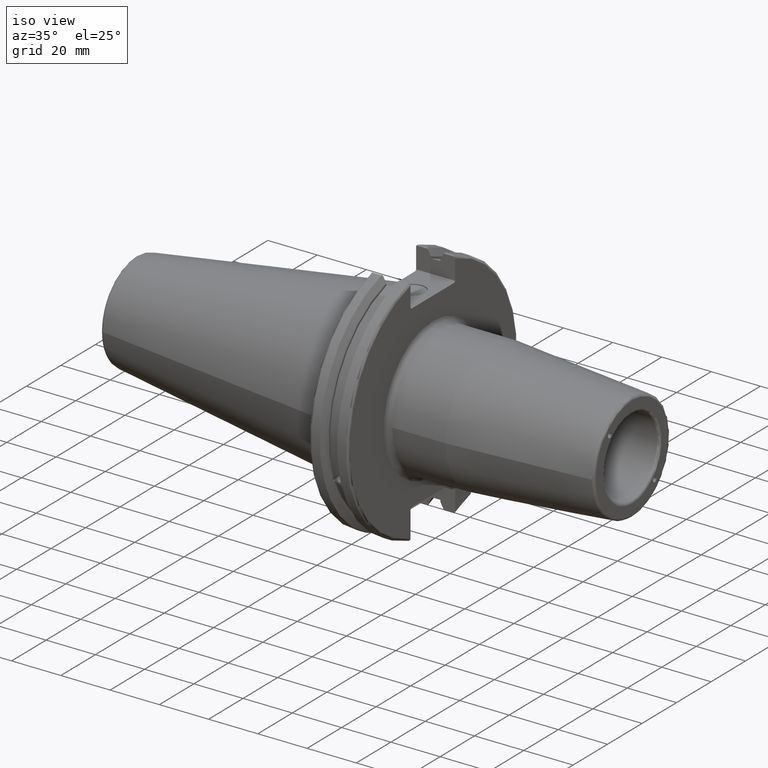
[diagram: clean part render]
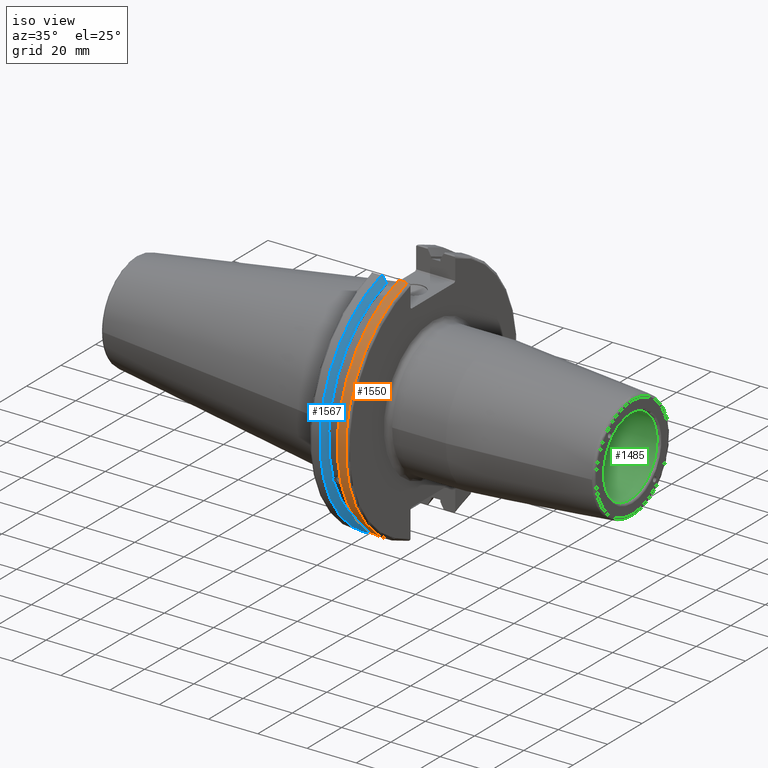
[diagram: same view with three faces highlighted in distinct colors, each labeled with its STEP entity id]
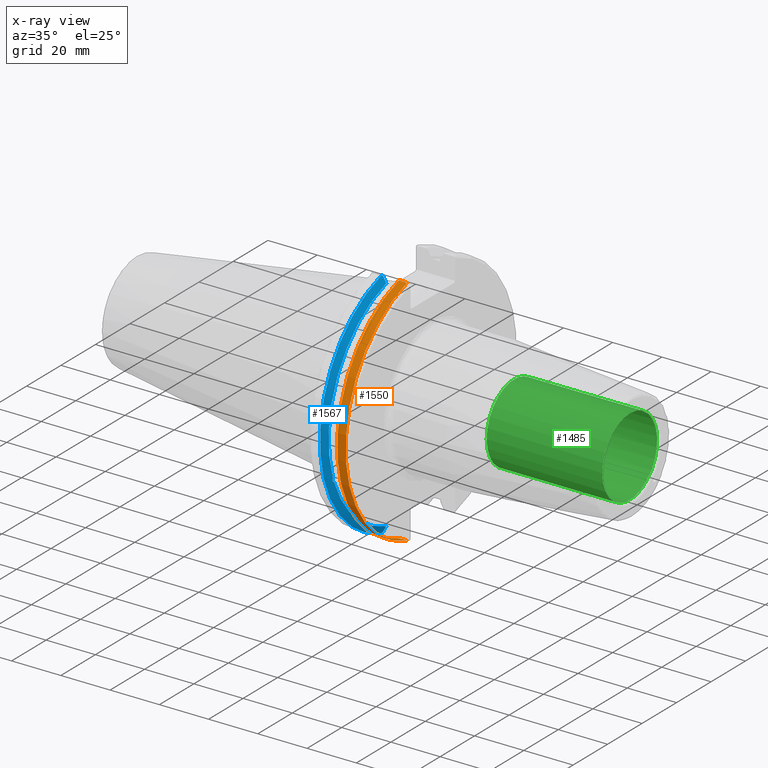
[diagram: x-ray of the same camera — body ghosted, the three highlighted faces saturated]
A machine part, iso view with three faces highlighted in distinct colors.
The next image is the same camera in x-ray (body ghosted, the three faces saturated) — at least one of them is partly hidden behind the body in this view.
Their STEP definitions:

[orange] entity #1550 — the highlighted cylindrical surface (partial cylindrical patch) has radius 49.2125 mm, axis along (1, 0, 0).
#168=LINE('',#3087,#262);
#169=LINE('',#3089,#263);
#262=VECTOR('',#2121,10.);
#263=VECTOR('',#2124,10.);
#292=CYLINDRICAL_SURFACE('',#1730,49.2125);
#429=FACE_OUTER_BOUND('',#537,.T.);
#537=EDGE_LOOP('',(#1383,#1384,#1385,#1386));
#591=CIRCLE('',#1655,49.2125);
#615=CIRCLE('',#1702,49.2125);
#698=VERTEX_POINT('',#2571);
#699=VERTEX_POINT('',#2575);
#759=VERTEX_POINT('',#2930);
#760=VERTEX_POINT('',#2939);
#870=EDGE_CURVE('',#699,#698,#591,.T.);
#951=EDGE_CURVE('',#759,#760,#615,.T.);
#997=EDGE_CURVE('',#760,#698,#168,.T.);
#998=EDGE_CURVE('',#699,#759,#169,.T.);
#1383=ORIENTED_EDGE('',*,*,#951,.F.);
#1384=ORIENTED_EDGE('',*,*,#998,.F.);
#1385=ORIENTED_EDGE('',*,*,#870,.T.);
#1386=ORIENTED_EDGE('',*,*,#997,.F.);
#1550=ADVANCED_FACE('',(#429),#292,.T.);
#1655=AXIS2_PLACEMENT_3D('',#2576,#1917,#1918);
#1702=AXIS2_PLACEMENT_3D('',#2940,#2042,#2043);
#1730=AXIS2_PLACEMENT_3D('',#3088,#2122,#2123);
#1917=DIRECTION('center_axis',(1.,0.,0.));
#1918=DIRECTION('ref_axis',(0.,0.,-1.));
#2042=DIRECTION('center_axis',(1.,0.,0.));
#2043=DIRECTION('ref_axis',(0.,-1.,1.60812264967664E-16));
#2121=DIRECTION('',(-1.,0.,0.));
#2122=DIRECTION('center_axis',(1.,0.,0.));
#2123=DIRECTION('ref_axis',(0.,-1.,1.22464679914735E-16));
#2124=DIRECTION('',(1.,0.,0.));
#2571=CARTESIAN_POINT('',(14.6602090340487,-13.4317035994433,-47.3440544806494));
#2575=CARTESIAN_POINT('',(14.6602090340487,-13.4317035994433,47.3440544806494));
#2576=CARTESIAN_POINT('Origin',(14.6602090340487,0.,0.));
#2930=CARTESIAN_POINT('',(18.05,-13.4317035994433,47.3440544806494));
#2939=CARTESIAN_POINT('',(18.05,-13.4317035994433,-47.3440544806494));
#2940=CARTESIAN_POINT('Origin',(18.05,0.,0.));
#3087=CARTESIAN_POINT('',(16.8551045170244,-13.4317035994433,-47.3440544806494));
#3088=CARTESIAN_POINT('Origin',(16.8551045170244,0.,0.));
#3089=CARTESIAN_POINT('',(16.8551045170244,-13.4317035994433,47.3440544806494));

[blue] entity #1567 — the highlighted conical surface has half-angle 60 deg.
#25=(
BOUNDED_CURVE()
B_SPLINE_CURVE(2,(#2961,#2962,#2963),.UNSPECIFIED.,.F.,.F.)
B_SPLINE_CURVE_WITH_KNOTS((3,3),(0.,0.275823910674601),.UNSPECIFIED.)
CURVE()
GEOMETRIC_REPRESENTATION_ITEM()
RATIONAL_B_SPLINE_CURVE((1.,1.00038235573593,1.00012873636487))
REPRESENTATION_ITEM('')
);
#26=(
BOUNDED_CURVE()
B_SPLINE_CURVE(2,(#2973,#2974,#2975),.UNSPECIFIED.,.F.,.F.)
B_SPLINE_CURVE_WITH_KNOTS((3,3),(0.0558332664507492,0.331657177124507),
 .UNSPECIFIED.)
CURVE()
GEOMETRIC_REPRESENTATION_ITEM()
RATIONAL_B_SPLINE_CURVE((1.00012873636807,1.00038235574544,1.))
REPRESENTATION_ITEM('')
);
#27=(
BOUNDED_CURVE()
B_SPLINE_CURVE(2,(#3008,#3009,#3010),.UNSPECIFIED.,.F.,.F.)
B_SPLINE_CURVE_WITH_KNOTS((3,3),(0.,0.0648240472897372),.UNSPECIFIED.)
CURVE()
GEOMETRIC_REPRESENTATION_ITEM()
RATIONAL_B_SPLINE_CURVE((1.,1.00011477674836,1.00019140645948))
REPRESENTATION_ITEM('')
);
#28=(
BOUNDED_CURVE()
B_SPLINE_CURVE(2,(#3016,#3017,#3018),.UNSPECIFIED.,.F.,.F.)
B_SPLINE_CURVE_WITH_KNOTS((3,3),(0.325260944932348,0.390084992222201),
 .UNSPECIFIED.)
CURVE()
GEOMETRIC_REPRESENTATION_ITEM()
RATIONAL_B_SPLINE_CURVE((1.00019140645916,1.00011477674817,1.))
REPRESENTATION_ITEM('')
);
#41=B_SPLINE_CURVE_WITH_KNOTS('',3,(#2505,#2506,#2507,#2508,#2509,#2510,
#2511,#2512,#2513,#2514,#2515,#2516,#2517,#2518),.UNSPECIFIED.,.F.,.F.,
(4,2,2,2,2,2,4),(0.426712868358719,0.441644498666906,0.48031331322313,0.518982127779354,
0.557650942335578,0.596319756891801,0.611251387199988),.UNSPECIFIED.);
#82=CONICAL_SURFACE('',#1755,47.8172386482472,1.0471975511966);
#446=FACE_OUTER_BOUND('',#556,.T.);
#556=EDGE_LOOP('',(#1454,#1455,#1456,#1457,#1458,#1459,#1460,#1461));
#595=CIRCLE('',#1662,46.4219772964944);
#617=CIRCLE('',#1709,49.2125);
#633=CIRCLE('',#1756,46.4219772964944);
#686=VERTEX_POINT('',#2502);
#687=VERTEX_POINT('',#2504);
#704=VERTEX_POINT('',#2595);
#762=VERTEX_POINT('',#2958);
#763=VERTEX_POINT('',#2960);
#766=VERTEX_POINT('',#2972);
#770=VERTEX_POINT('',#3006);
#771=VERTEX_POINT('',#3012);
#855=EDGE_CURVE('',#687,#686,#41,.T.);
#878=EDGE_CURVE('',#687,#704,#595,.T.);
#956=EDGE_CURVE('',#763,#762,#25,.T.);
#962=EDGE_CURVE('',#766,#704,#26,.T.);
#970=EDGE_CURVE('',#770,#762,#27,.T.);
#972=EDGE_CURVE('',#770,#771,#617,.T.);
#973=EDGE_CURVE('',#766,#771,#28,.T.);
#1015=EDGE_CURVE('',#763,#686,#633,.T.);
#1454=ORIENTED_EDGE('',*,*,#855,.T.);
#1455=ORIENTED_EDGE('',*,*,#1015,.F.);
#1456=ORIENTED_EDGE('',*,*,#956,.T.);
#1457=ORIENTED_EDGE('',*,*,#970,.F.);
#1458=ORIENTED_EDGE('',*,*,#972,.T.);
#1459=ORIENTED_EDGE('',*,*,#973,.F.);
#1460=ORIENTED_EDGE('',*,*,#962,.T.);
#1461=ORIENTED_EDGE('',*,*,#878,.F.);
#1567=ADVANCED_FACE('',(#446),#82,.T.);
#1662=AXIS2_PLACEMENT_3D('',#2596,#1933,#1934);
#1709=AXIS2_PLACEMENT_3D('',#3014,#2067,#2068);
#1755=AXIS2_PLACEMENT_3D('',#3130,#2180,#2181);
#1756=AXIS2_PLACEMENT_3D('',#3131,#2182,#2183);
#1933=DIRECTION('center_axis',(1.,0.,0.));
#1934=DIRECTION('ref_axis',(0.,0.,-1.));
#2067=DIRECTION('center_axis',(1.,0.,0.));
#2068=DIRECTION('ref_axis',(0.,0.,-1.));
#2180=DIRECTION('center_axis',(-1.,0.,0.));
#2181=DIRECTION('ref_axis',(0.,-1.,-1.22464679914735E-16));
#2182=DIRECTION('center_axis',(1.,0.,0.));
#2183=DIRECTION('ref_axis',(0.,0.,-1.));
#2502=CARTESIAN_POINT('',(9.2191,-43.9096390749305,-15.0646464421033));
#2504=CARTESIAN_POINT('',(9.2191,-43.3201030900029,-16.684383248648));
#2505=CARTESIAN_POINT('Ctrl Pts',(9.21910000000001,-43.3201030900029,-16.6843832486479));
#2506=CARTESIAN_POINT('Ctrl Pts',(9.20211843903392,-43.3613106941341,-16.6592273018006));
#2507=CARTESIAN_POINT('Ctrl Pts',(9.18608675403322,-43.4012416983557,-16.6326763251437));
#2508=CARTESIAN_POINT('Ctrl Pts',(9.13238673845037,-43.5391037343221,-16.5325130832406));
#2509=CARTESIAN_POINT('Ctrl Pts',(9.09621610663556,-43.6406982153491,-16.441180795372));
#2510=CARTESIAN_POINT('Ctrl Pts',(9.04690868251975,-43.8110833825827,-16.2291323464527));
#2511=CARTESIAN_POINT('Ctrl Pts',(9.0341,-43.8794096049168,-16.10796730316));
#2512=CARTESIAN_POINT('Ctrl Pts',(9.0341,-43.9675796948952,-15.8657219718732));
#2513=CARTESIAN_POINT('Ctrl Pts',(9.04690868251975,-43.9931221605126,-15.7289849146254));
#2514=CARTESIAN_POINT('Ctrl Pts',(9.09621610663556,-43.9989016655819,-15.4570249042867));
#2515=CARTESIAN_POINT('Ctrl Pts',(9.13238673845037,-43.9797830409458,-15.3217566390708));
#2516=CARTESIAN_POINT('Ctrl Pts',(9.18608675403322,-43.9385582852181,-15.1564111356409));
#2517=CARTESIAN_POINT('Ctrl Pts',(9.20211843903392,-43.9250360001461,-15.1104047527575));
#2518=CARTESIAN_POINT('Ctrl Pts',(9.2191,-43.9096390749305,-15.0646464421033));
#2595=CARTESIAN_POINT('',(9.2191,-12.95,-44.5791147973604));
#2596=CARTESIAN_POINT('Origin',(9.2191,0.,0.));
#2958=CARTESIAN_POINT('',(7.88638960562424,-12.95,46.9780755322918));
#2960=CARTESIAN_POINT('',(9.2191,-12.95,44.5791147973604));
#2961=CARTESIAN_POINT('Ctrl Pts',(9.2191,-12.95,44.5791147973604));
#2962=CARTESIAN_POINT('Ctrl Pts',(8.57020449055857,-12.95,45.7494966802148));
#2963=CARTESIAN_POINT('Ctrl Pts',(7.88638960562424,-12.95,46.9780755322918));
#2972=CARTESIAN_POINT('',(7.88638960562425,-12.95,-46.9780755322918));
#2973=CARTESIAN_POINT('Ctrl Pts',(7.88638960562425,-12.95,-46.9780755322918));
#2974=CARTESIAN_POINT('Ctrl Pts',(8.57020449054166,-12.95,-45.7494966802452));
#2975=CARTESIAN_POINT('Ctrl Pts',(9.2191,-12.95,-44.5791147973604));
#3006=CARTESIAN_POINT('',(7.60799096595127,-13.4317035994433,47.3440544806494));
#3008=CARTESIAN_POINT('Ctrl Pts',(7.60799096595126,-13.4317035994433,47.3440544806494));
#3009=CARTESIAN_POINT('Ctrl Pts',(7.7482689666382,-13.1896660169966,47.1601640966265));
#3010=CARTESIAN_POINT('Ctrl Pts',(7.88638960562424,-12.95,46.9780755322918));
#3012=CARTESIAN_POINT('',(7.60799096595127,-13.4317035994433,-47.3440544806494));
#3014=CARTESIAN_POINT('Origin',(7.60799096595127,0.,0.));
#3016=CARTESIAN_POINT('Ctrl Pts',(7.88638960562425,-12.95,-46.9780755322918));
#3017=CARTESIAN_POINT('Ctrl Pts',(7.74826896663813,-13.1896660169967,-47.1601640966265));
#3018=CARTESIAN_POINT('Ctrl Pts',(7.60799096595127,-13.4317035994434,-47.3440544806494));
#3130=CARTESIAN_POINT('Origin',(8.41354548297563,0.,0.));
#3131=CARTESIAN_POINT('Origin',(9.2191,0.,0.));

[green] entity #1485 — the highlighted cylindrical surface (bore or boss wall) has radius 15.875 mm, axis along (1, 0, 0).
#83=LINE('',#2212,#177);
#177=VECTOR('',#1784,15.875);
#271=CYLINDRICAL_SURFACE('',#1603,15.875);
#364=FACE_OUTER_BOUND('',#455,.T.);
#455=EDGE_LOOP('',(#1027,#1028,#1029,#1030,#1031));
#560=CIRCLE('',#1595,15.875);
#561=CIRCLE('',#1596,15.875);
#565=CIRCLE('',#1604,15.875);
#636=VERTEX_POINT('',#2196);
#637=VERTEX_POINT('',#2197);
#642=VERTEX_POINT('',#2211);
#790=EDGE_CURVE('',#636,#637,#560,.T.);
#791=EDGE_CURVE('',#637,#636,#561,.T.);
#797=EDGE_CURVE('',#637,#642,#83,.T.);
#798=EDGE_CURVE('',#642,#642,#565,.T.);
#1027=ORIENTED_EDGE('',*,*,#790,.F.);
#1028=ORIENTED_EDGE('',*,*,#791,.F.);
#1029=ORIENTED_EDGE('',*,*,#797,.T.);
#1030=ORIENTED_EDGE('',*,*,#798,.F.);
#1031=ORIENTED_EDGE('',*,*,#797,.F.);
#1485=ADVANCED_FACE('',(#364),#271,.F.);
#1595=AXIS2_PLACEMENT_3D('',#2198,#1766,#1767);
#1596=AXIS2_PLACEMENT_3D('',#2199,#1768,#1769);
#1603=AXIS2_PLACEMENT_3D('',#2210,#1782,#1783);
#1604=AXIS2_PLACEMENT_3D('',#2213,#1785,#1786);
#1766=DIRECTION('center_axis',(-1.,0.,0.));
#1767=DIRECTION('ref_axis',(0.,-1.,1.83697019872103E-16));
#1768=DIRECTION('center_axis',(-1.,0.,0.));
#1769=DIRECTION('ref_axis',(0.,-1.,1.83697019872103E-16));
#1782=DIRECTION('center_axis',(1.,0.,0.));
#1783=DIRECTION('ref_axis',(0.,1.,0.));
#1784=DIRECTION('',(-1.,0.,0.));
#1785=DIRECTION('center_axis',(1.,0.,0.));
#1786=DIRECTION('ref_axis',(0.,0.,-1.));
#2196=CARTESIAN_POINT('',(99.,-1.94412679364642E-15,15.875));
#2197=CARTESIAN_POINT('',(99.,-15.875,-1.94412679364642E-15));
#2198=CARTESIAN_POINT('Origin',(99.,0.,0.));
#2199=CARTESIAN_POINT('Origin',(99.,0.,0.));
#2210=CARTESIAN_POINT('Origin',(76.,0.,0.));
#2211=CARTESIAN_POINT('',(52.,-15.875,-1.94412679364642E-15));
#2212=CARTESIAN_POINT('',(76.,-15.875,-1.94412679364642E-15));
#2213=CARTESIAN_POINT('Origin',(52.,0.,0.));